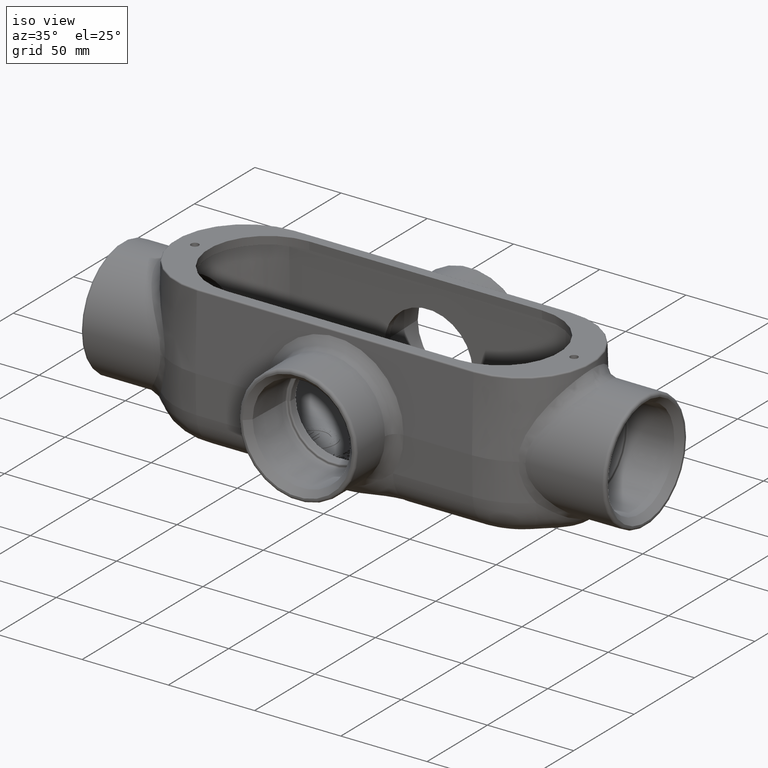
[diagram: clean part render]
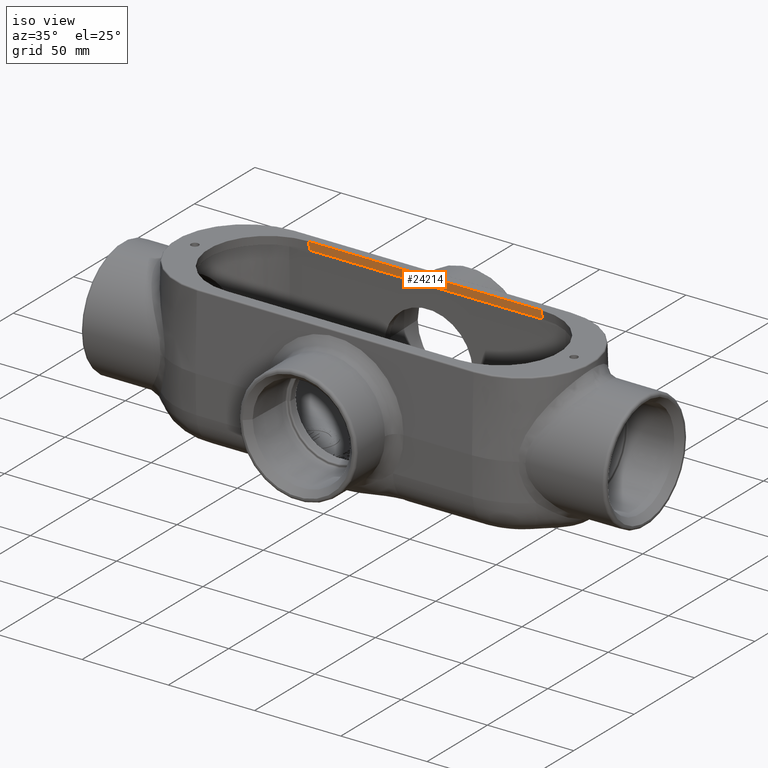
[diagram: same view with one face highlighted and labeled with its STEP entity id]
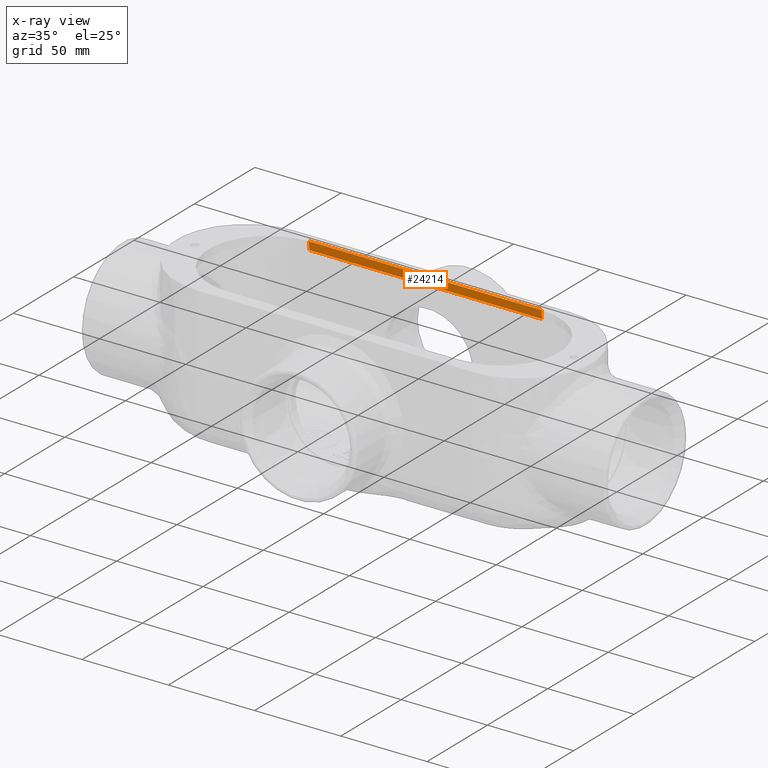
[diagram: x-ray of the same camera — body ghosted, the highlighted face saturated]
A machine part, iso view. The second image highlights one B-rep face of the part: STEP entity #24214.
The next image is the same camera in x-ray: the body ghosted, the highlighted face saturated — about 0% of this face is hidden behind the body in this view.
In plain terms, the highlighted planar face has unit normal (-0, 0.9962, 0.0872).
Its self-contained STEP definition (entity closure, byte-faithful):
#1121=PLANE('',#25418);
#1433=LINE('',#33949,#4179);
#3919=LINE('',#42824,#6665);
#3920=LINE('',#42827,#6666);
#3921=LINE('',#42828,#6667);
#4179=VECTOR('',#25917,0.393700787401575);
#6665=VECTOR('',#30523,0.393700787401575);
#6666=VECTOR('',#30526,0.393700787401575);
#6667=VECTOR('',#30527,0.393700787401575);
#8776=FACE_OUTER_BOUND('',#10213,.T.);
#10213=EDGE_LOOP('',(#22891,#22892,#22893,#22894));
#10813=VERTEX_POINT('',#33946);
#10814=VERTEX_POINT('',#33948);
#12636=VERTEX_POINT('',#42822);
#12637=VERTEX_POINT('',#42826);
#13147=EDGE_CURVE('',#10813,#10814,#1433,.T.);
#16061=EDGE_CURVE('',#10814,#12636,#3919,.T.);
#16062=EDGE_CURVE('',#12636,#12637,#3920,.F.);
#16063=EDGE_CURVE('',#10813,#12637,#3921,.T.);
#22891=ORIENTED_EDGE('',*,*,#16062,.F.);
#22892=ORIENTED_EDGE('',*,*,#16061,.F.);
#22893=ORIENTED_EDGE('',*,*,#13147,.F.);
#22894=ORIENTED_EDGE('',*,*,#16063,.T.);
#24214=ADVANCED_FACE('',(#8776),#1121,.F.);
#25418=AXIS2_PLACEMENT_3D('',#42825,#30524,#30525);
#25917=DIRECTION('',(1.,9.87322004298426E-17,0.));
#30523=DIRECTION('',(0.,0.0871557427476582,-0.996194698091746));
#30524=DIRECTION('center_axis',(-9.83564945991407E-17,0.996194698091746,
0.0871557427476582));
#30525=DIRECTION('ref_axis',(1.,9.87322004298426E-17,0.));
#30526=DIRECTION('',(1.,9.87322004298425E-17,0.));
#30527=DIRECTION('',(0.,0.0871557427476582,-0.996194698091746));
#33946=CARTESIAN_POINT('',(-2.65625,1.34375,0.));
#33948=CARTESIAN_POINT('',(2.65625,1.34375,0.));
#33949=CARTESIAN_POINT('',(1.328125,1.34375,0.));
#42822=CARTESIAN_POINT('',(2.65625,1.36015412441111,-0.1875));
#42824=CARTESIAN_POINT('',(2.65625,1.34375,0.));
#42825=CARTESIAN_POINT('Origin',(2.65625,1.34375,-2.18547839493141E-17));
#42826=CARTESIAN_POINT('',(-2.65625,1.36015412441111,-0.1875));
#42827=CARTESIAN_POINT('',(1.328125,1.36015412441111,-0.1875));
#42828=CARTESIAN_POINT('',(-2.65625,1.34375,0.));